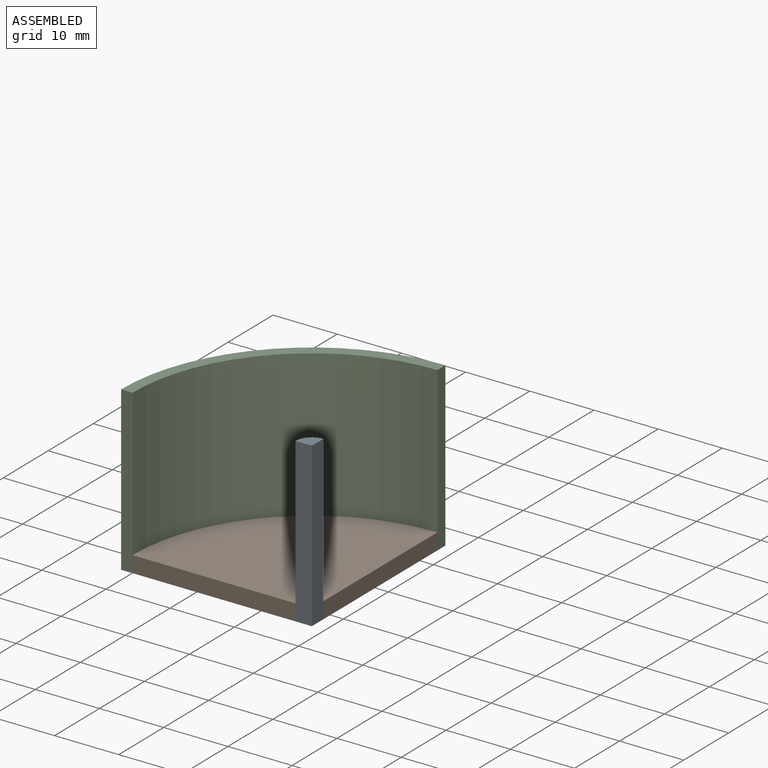
[diagram: assembled view]
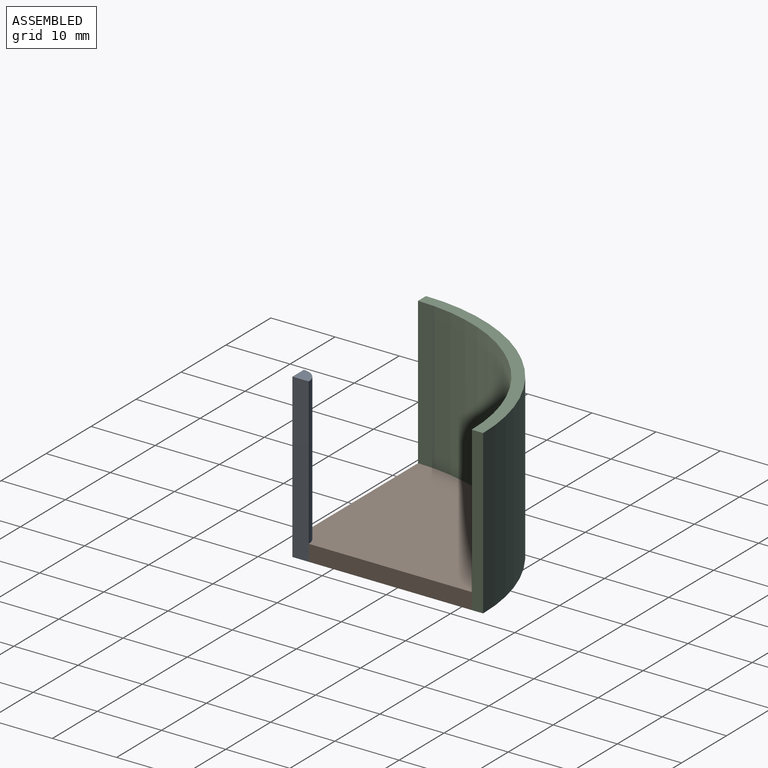
[diagram: assembled view, second angle]
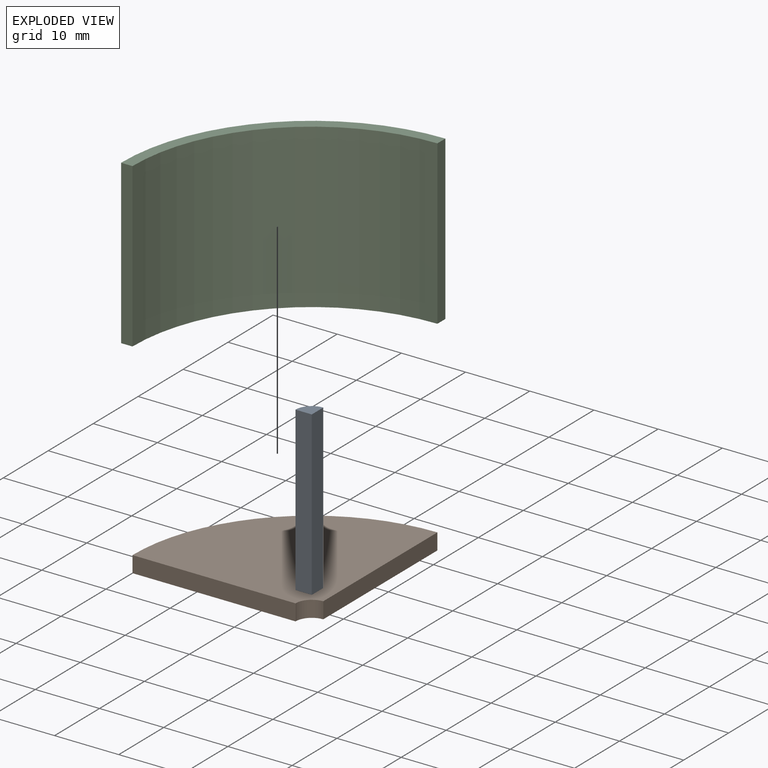
[diagram: exploded view]
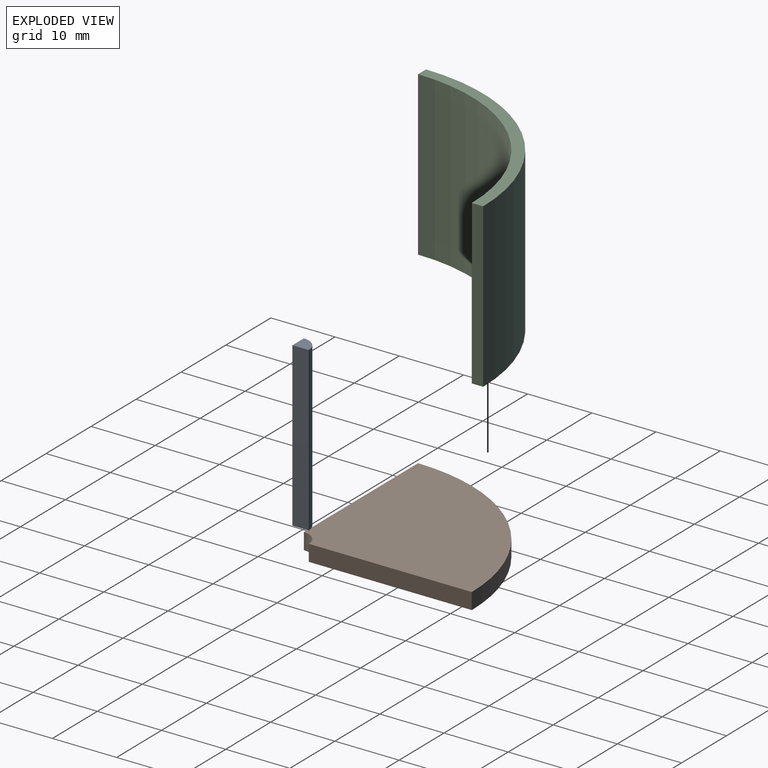
[diagram: exploded view, second angle]
ASSEMBLY  parts=3 mates=2
PART A: 5 faces, bbox 2.5x2.5x25.4 mm
  f0: plane 25.4x2.54mm, normal (0,-1,0), area 64.5mm2, adj f1,f2,f3,f4
  f1: plane 25.4x2.54mm, normal (1,0,0), area 64.5mm2, adj f0,f2,f3,f4
  f2: cylinder r=2.54mm len=25.4mm, axis (0,0,-1), area 101.3mm2, adj f0,f1,f3,f4
  f3: plane 2.54x2.54mm, normal (0,0,1), area 5.1mm2, adj f0,f1,f2
  f4: plane 2.54x2.54mm, normal (0,0,-1), area 5.1mm2, adj f0,f1,f2
PART B: 6 faces, bbox 27.9x27.9x2.5 mm
  f0: cylinder r=2.54mm len=2.54mm, axis (0,0,-1), area 10.1mm2, adj f1,f3,f4,f5
  f1: plane 25.4x2.54mm, normal (1,0,0), area 64.5mm2, adj f0,f2,f4,f5
  f2: cylinder r=27.94mm len=27.94mm, axis (0,0,-1), area 111.5mm2, adj f1,f3,f4,f5
  f3: plane 25.4x2.54mm, normal (0,-1,0), area 64.5mm2, adj f0,f2,f4,f5
  f4: plane 27.94x27.94mm, normal (0,0,1), area 608mm2, adj f0,f1,f2,f3
  f5: plane 27.94x27.94mm, normal (0,0,-1), area 608mm2, adj f0,f1,f2,f3
PART C: 6 faces, bbox 29.7x29.7x25.4 mm
  f0: cylinder r=27.94mm len=27.94mm, axis (0,0,-1), area 1114.8mm2, adj f1,f3,f4,f5
  f1: plane 25.4x1.77mm, normal (1,0,0), area 45mm2, adj f0,f2,f4,f5
  f2: cylinder r=29.71mm len=29.71mm, axis (0,0,-1), area 1185.4mm2, adj f1,f3,f4,f5
  f3: plane 25.4x1.77mm, normal (0,-1,0), area 45mm2, adj f0,f2,f4,f5
  f4: plane 29.71x29.71mm, normal (0,0,1), area 80.2mm2, adj f0,f1,f2,f3
  f5: plane 29.71x29.71mm, normal (0,0,-1), area 80.2mm2, adj f0,f1,f2,f3
PLACE A t=(10.58,-39.48,17.64)mm
PLACE B t=(10.58,-39.48,17.64)mm
PLACE C t=(10.58,-39.48,17.64)mm
MATE fastened B.f5 <-> A.f4  axis (0,0,-1) through (-23.68,-15.41,17.64)mm
MATE fastened B.f5 <-> C.f5  axis (0,0,1) through (-49.08,-15.41,17.64)mm
